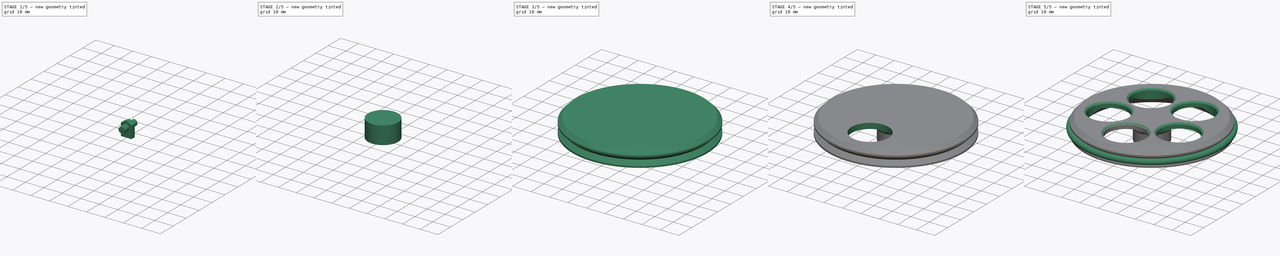
[diagram: build sequence overview — one tinted view per stage of 5, left to right]
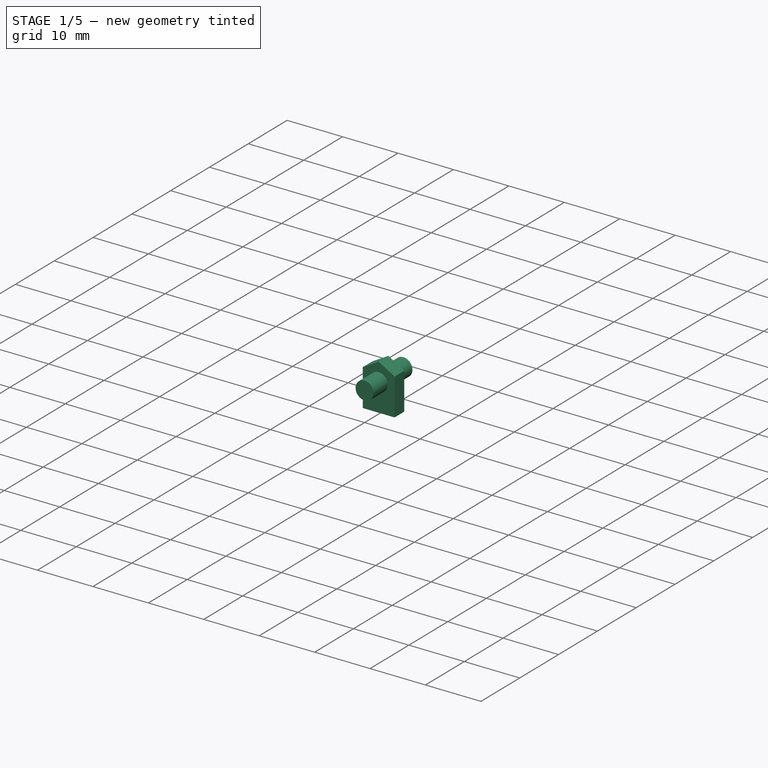
[diagram: stage 1 of 5 — iso view after this stage's code; geometry added in this stage tinted green]
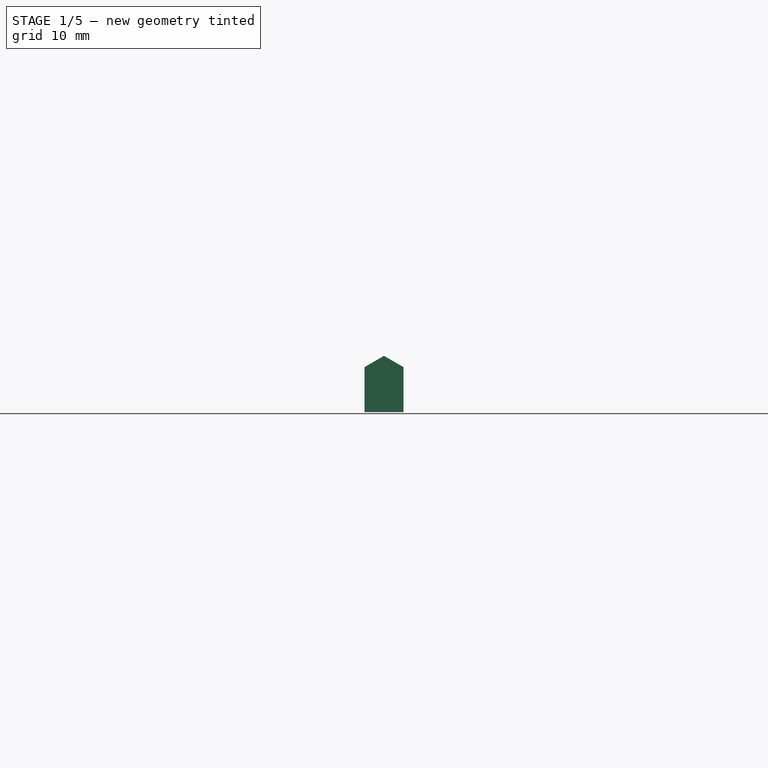
[diagram: stage 1 of 5 — front view after this stage's code; geometry added in this stage tinted green]
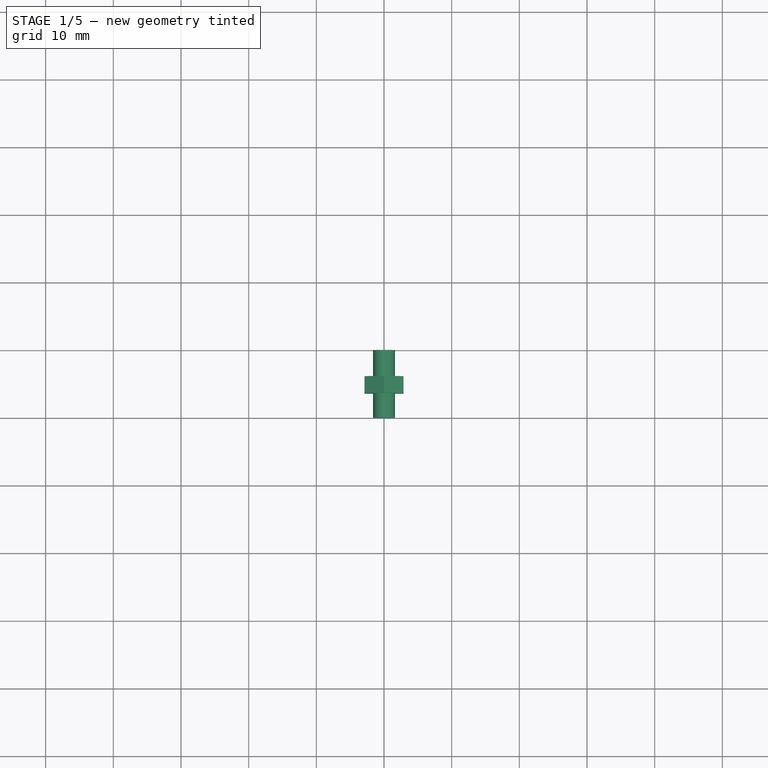
[diagram: stage 1 of 5 — top view after this stage's code; geometry added in this stage tinted green]
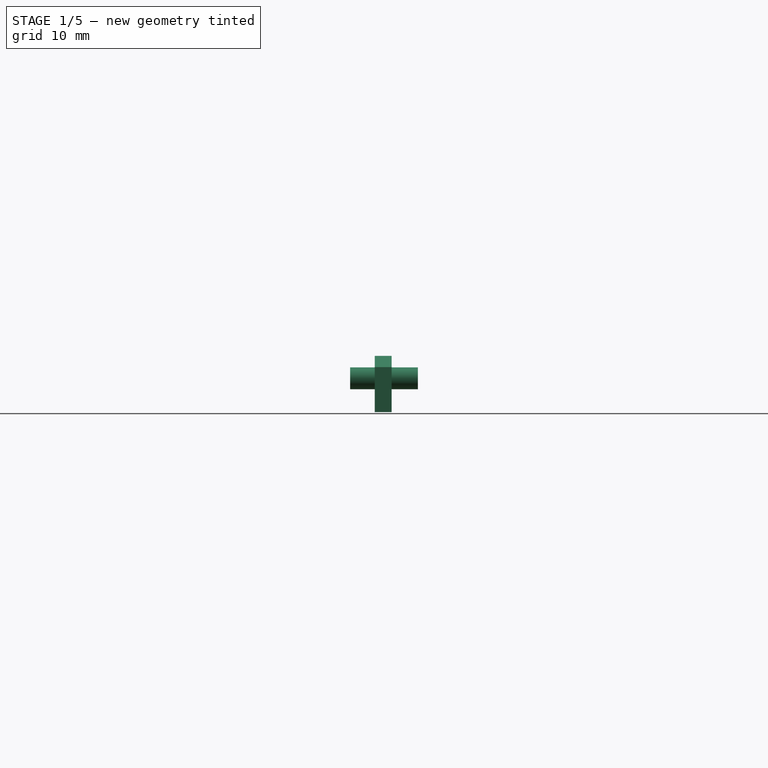
[diagram: stage 1 of 5 — right view after this stage's code; geometry added in this stage tinted green]
FCSTD DOCUMENT  (FreeCAD 0.14R3692 (Git))
Label: WheelNG
License: CC-BY 3.0
LicenseURL: http://creativecommons.org/licenses/by/3.0/
objects: Sketcher::SketchObject×6, PartDesign::Pocket×4, Part::Cylinder×2, Part::MultiFuse×2, PartDesign::Chamfer×2, Part::Feature×2, Part::Torus×1, PartDesign::Revolution×1, PartDesign::Pad×1, Part::FeaturePython×1, Part::Cut×1, PartDesign::PolarPattern×1, App::DocumentObjectGroup×1
note: 30 computed .brp shape members not serialized (recipe doc carries the construction recipe); baked Part::Feature solids carry a one-line shape summary decoded from their .brp

FEATURE [Sketcher::SketchObject] Sketch003  label="WheelShaftNutSketch003"
  Placement = pos=(0,0,0) rot=(1,0,0;1.5708rad)
  sketch-geometry (6):
    g0: LineSegment StartX=2.875 StartY=-5 StartZ=0 EndX=2.875 EndY=1.65988 EndZ=0
    g1: LineSegment StartX=2.875 StartY=1.65988 StartZ=0 EndX=0 EndY=3.31976 EndZ=0
    g2: LineSegment StartX=0 StartY=3.31976 StartZ=0 EndX=-2.875 EndY=1.65988 EndZ=0
    g3: LineSegment StartX=-2.875 StartY=1.65988 StartZ=0 EndX=-2.875 EndY=-5 EndZ=0
    g4: LineSegment StartX=-2.875 StartY=-5 StartZ=0 EndX=2.875 EndY=-5 EndZ=0
    g5: Circle [constr] CenterX=0 CenterY=0 CenterZ=0 NormalX=0 NormalY=0 NormalZ=1 Radius=3.31976
  constraints (17):
    c: Coincident(g0,g1)
    c: Coincident(g1,g2)
    c: Coincident(g2,g3)
    c: Coincident(g3,g4)
    c: Coincident(g0,g4)
    c: Horizontal(g4)
    c: Vertical(g0)
    c: Vertical(g3)
    c: Coincident(g5,g-1)
    c: PointOnObject(g1,g5)
    c: PointOnObject(g1,g-2)
    c: PointOnObject(g2,g5)
    c: PointOnObject(g0,g5)
    c: Equal(g1,g2)
    c: Angle(g2,g1) = 2.0944
    c: DistanceY(g-1,g3) = -5
    c: DistanceX(g4) = 5.75
FEATURE [PartDesign::Pad] Pad  label="WheelShaftNutPad"
  Length = 2.5
  Length2 = 100
  Midplane = true
  Placement = pos=(0,0,0) rot=(1,0,0;1.5708rad)
  Sketch = -> Sketch003
  Type = 0
FEATURE [Part::FeaturePython] Clone  label="Clone of WheelShaftNutPad"  # Draft clone (typed FeaturePython)
  Objects = -> [Pad]
  Placement = pos=(0,4.875,-2) rot=(1,0,0;1.5708rad)
  Scale = (1,1,1)
FEATURE [Part::Cylinder] Cylinder001  label="WheelShaftScrewCylinder001"
  Angle = 360
  Height = 10
  Placement = pos=(0,0,-2) rot=(-1,0,0;1.5708rad)
  Radius = 1.625
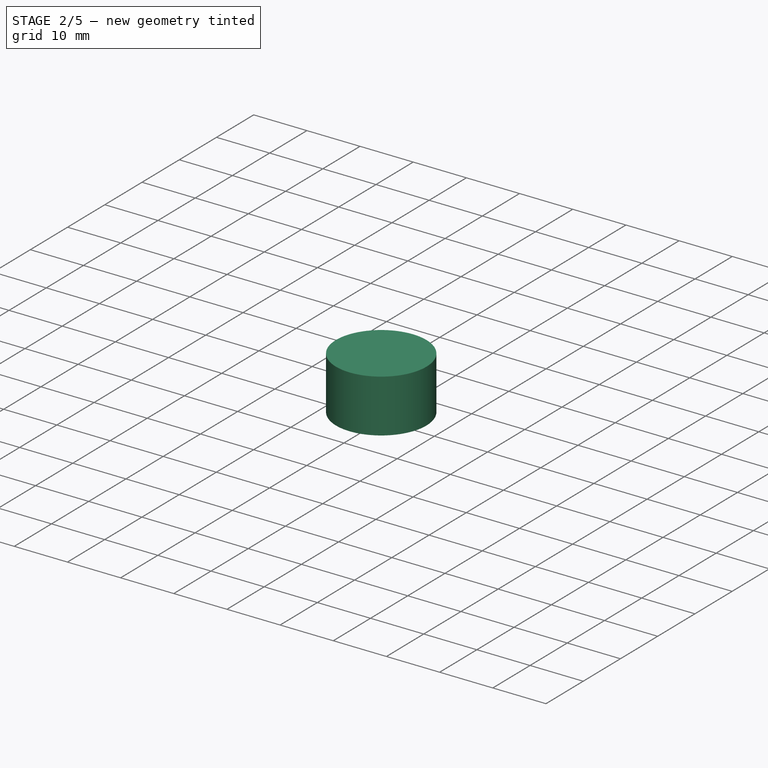
[diagram: stage 2 of 5 — iso view after this stage's code; geometry added in this stage tinted green]
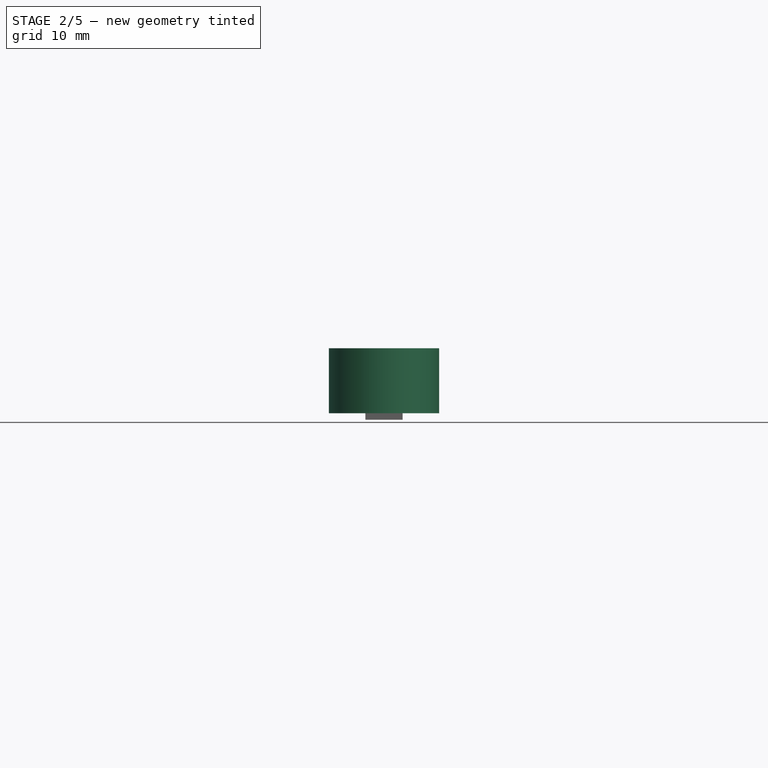
[diagram: stage 2 of 5 — front view after this stage's code; geometry added in this stage tinted green]
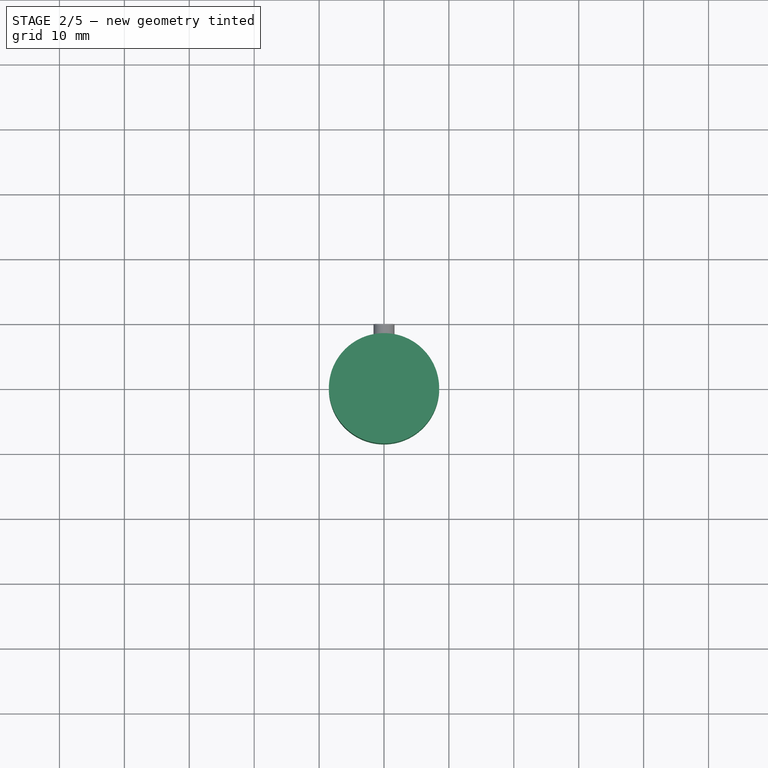
[diagram: stage 2 of 5 — top view after this stage's code; geometry added in this stage tinted green]
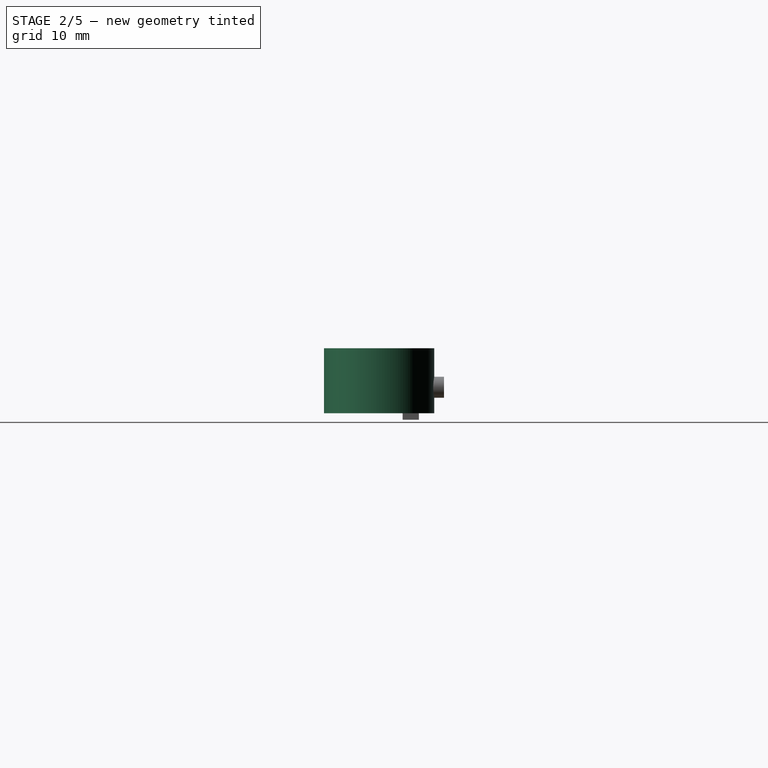
[diagram: stage 2 of 5 — right view after this stage's code; geometry added in this stage tinted green]
FEATURE [Part::Cylinder] Cylinder  label="WheelShaftCylinder"
  Angle = 360
  Height = 10
  Placement = pos=(0,0,-6) rot=(0,0,1;0rad)
  Radius = 8.5
FEATURE [Sketcher::SketchObject] Sketch001  label="WheelShaftRecesSketch001"
  Placement = pos=(0,0,-6) rot=(1,0,0;3.14159rad)
  Support = -> Cylinder [Face3]
  sketch-geometry (1):
    g0: Circle CenterX=0 CenterY=0 CenterZ=0 NormalX=0 NormalY=0 NormalZ=1 Radius=2.625
  constraints (2):
    c: Coincident(g0,g-1)
    c: Radius(g0) = 2.625
FEATURE [PartDesign::Pocket] Pocket  label="WheelShaftRecesPocket"
  Length = 1.5
  Placement = pos=(0,0,-6) rot=(0,0,1;0rad)
  Sketch = -> Sketch001
  Type = 0
FEATURE [Part::MultiFuse] Fusion  label="WheelShaftNutScrewFusion"
  Shapes = -> [Clone,Cylinder001]
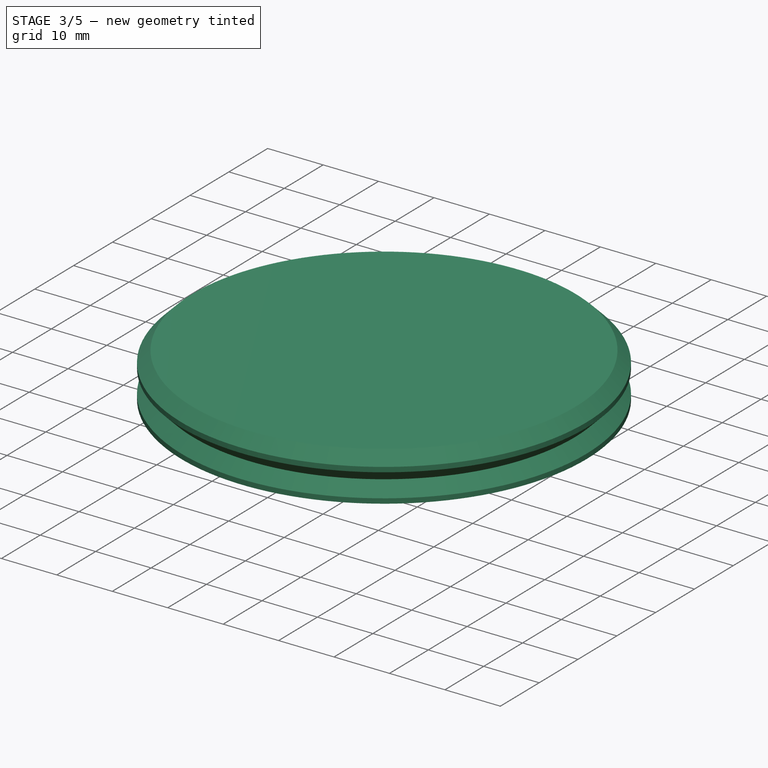
[diagram: stage 3 of 5 — iso view after this stage's code; geometry added in this stage tinted green]
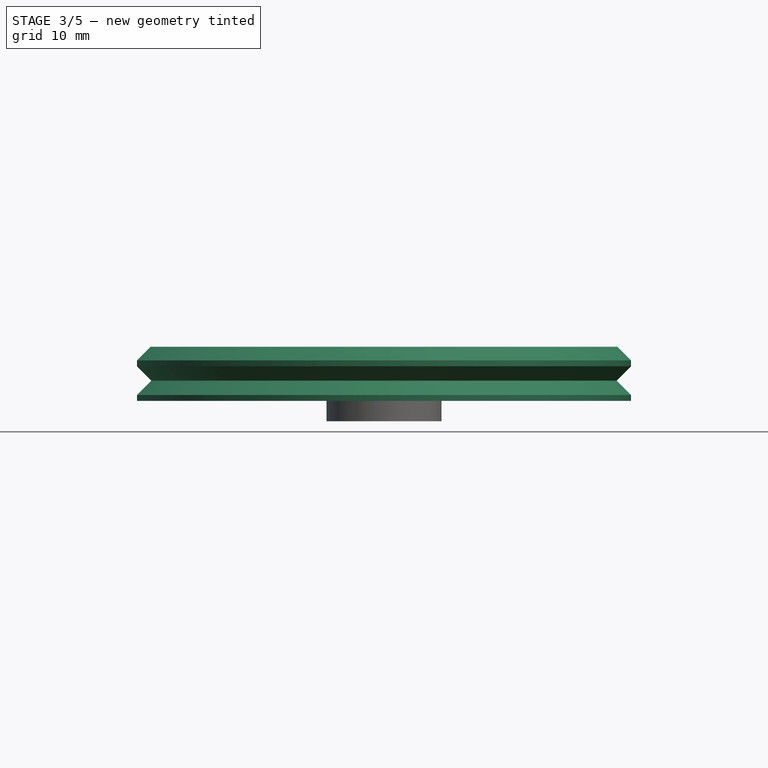
[diagram: stage 3 of 5 — front view after this stage's code; geometry added in this stage tinted green]
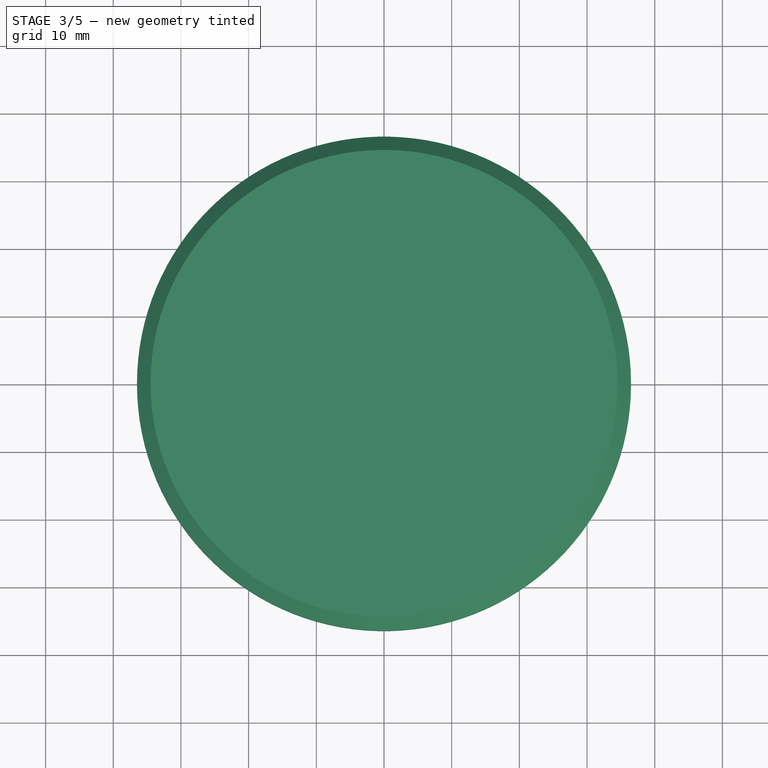
[diagram: stage 3 of 5 — top view after this stage's code; geometry added in this stage tinted green]
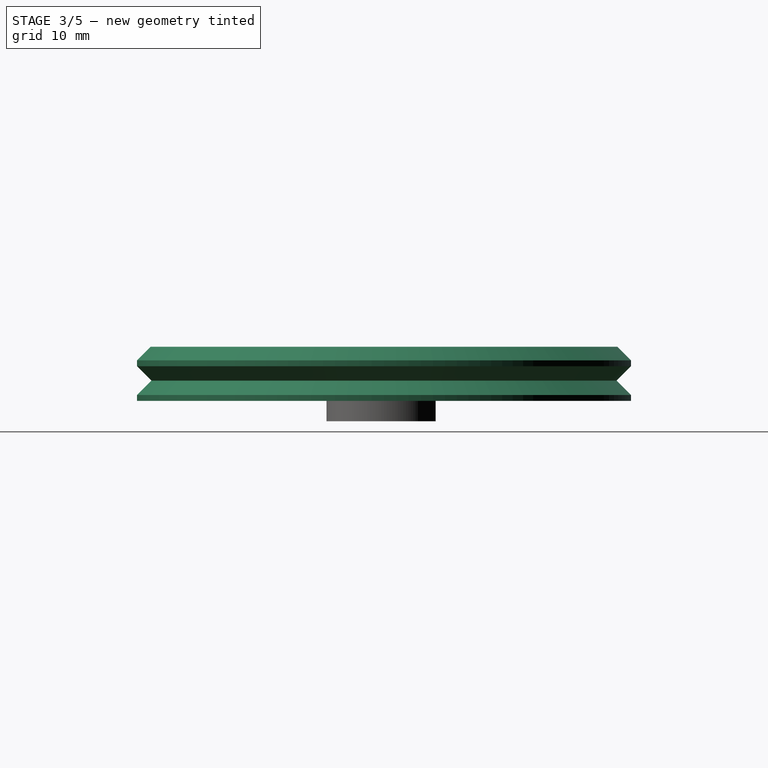
[diagram: stage 3 of 5 — right view after this stage's code; geometry added in this stage tinted green]
FEATURE [Sketcher::SketchObject] Sketch  label="WheelSketch"
  Placement = pos=(0,0,0) rot=(1,0,0;1.5708rad)
  sketch-geometry (13):
    g0: LineSegment StartX=34.5 StartY=5 StartZ=0 EndX=36.5 EndY=3 EndZ=0
    g1: LineSegment StartX=36.5 StartY=3 StartZ=0 EndX=36.5 EndY=2.12132 EndZ=0
    g2: LineSegment StartX=34.3787 StartY=0 StartZ=0 EndX=36.5 EndY=-2.12132 EndZ=0
    g3: LineSegment StartX=36.5 StartY=-2.12132 StartZ=0 EndX=36.5 EndY=-3 EndZ=0
    g4: LineSegment StartX=32.5 StartY=-3 StartZ=0 EndX=27.5 EndY=2 EndZ=0
    g5: LineSegment StartX=27.5 StartY=2 StartZ=0 EndX=0 EndY=2 EndZ=0
    g6: LineSegment StartX=0 StartY=2 StartZ=0 EndX=0 EndY=5 EndZ=0
    g7: LineSegment StartX=0 StartY=5 StartZ=0 EndX=34.5 EndY=5 EndZ=0
    g8: Circle [constr] CenterX=36.5 CenterY=0 CenterZ=0 NormalX=0 NormalY=0 NormalZ=1 Radius=1.5
    g9: LineSegment [constr] StartX=36.5 StartY=2.12132 StartZ=0 EndX=38.6213 EndY=1.6e-11 EndZ=0
    g10: LineSegment [constr] StartX=38.6213 StartY=1.6e-11 StartZ=0 EndX=36.5 EndY=-2.12132 EndZ=0
    g11: LineSegment StartX=36.5 StartY=-3 StartZ=0 EndX=32.5 EndY=-3 EndZ=0
    g12: LineSegment StartX=34.3787 StartY=0 StartZ=0 EndX=36.5 EndY=2.12132 EndZ=0
  constraints (39):
    c: Coincident(g0,g1)
    c: Coincident(g2,g3)
    c: Coincident(g4,g5)
    c: Coincident(g5,g6)
    c: Coincident(g6,g7)
    c: Coincident(g7,g0)
    c: Horizontal(g7)
    c: Horizontal(g5)
    c: Vertical(g1)
    c: Vertical(g3)
    c: Vertical(g6)
    c: Radius(g8) = 1.5
    c: PointOnObject(g8,g-1)
    c: DistanceX(g-1,g8) = 36.5
    c: Tangent(g8,g2)
    c: PointOnObject(g2,g-1)
    c: Coincident(g9,g10)
    c: Coincident(g1,g9)
    c: Coincident(g10,g2)
    c: Tangent(g9,g8)
    c: Tangent(g10,g8)
    c: Perpendicular(g9,g10)
    c: Equal(g1,g3)
    c: DistanceY(g0,g3) = -6
    c: Angle(g7,g0) = 2.35619
    c: DistanceY(g6) = 3
    c: PointOnObject(g5,g-2)
    c: DistanceY(g-1,g5) = 2
    c: Coincident(g4,g11)
    c: Horizontal(g11)
    c: Angle(g11,g4) = 2.35619
    c: DistanceX(g4,g3) = 4
    c: Coincident(g11,g3)
    c: Coincident(g12,g2)
    c: Coincident(g12,g1)
    c: Tangent(g12,g8)
    c: Equal(g12,g2)
    c: Equal(g2,g10)
    c: Equal(g10,g9)
FEATURE [PartDesign::Revolution] Revolution  label="WheelRevolution"
  Angle = 360
  Axis = (0,0,1)
  Base = (0,0,0)
  Placement = pos=(0,0,0) rot=(1,0,0;1.5708rad)
  ReferenceAxis = -> Sketch [V_Axis]
  Reversed = true
  Sketch = -> Sketch
FEATURE [Sketcher::SketchObject] Sketch002  label="WheelShaftHoleSketch002"
  Placement = pos=(0,0,-4.5) rot=(1,0,0;3.14159rad)
  Support = -> Pocket [Face5]
  sketch-geometry (2):
    g0: ArcOfCircle CenterX=0 CenterY=0 CenterZ=0 NormalX=0 NormalY=0 NormalZ=1 Radius=2.625 StartAngle=2.47406 EndAngle=6.95071
    g1: LineSegment StartX=2.06155 StartY=1.625 StartZ=0 EndX=-2.06155 EndY=1.625 EndZ=0
  constraints (6):
    c: Coincident(g0,g-1)
    c: Coincident(g1,g0)
    c: Coincident(g1,g0)
    c: Horizontal(g1)
    c: DistanceY(g-1,g0) = 1.625
    c: Radius(g0) = 2.625
FEATURE [PartDesign::Pocket] Pocket001  label="WheelShaftHolePocket001"
  Length = 6.5
  Placement = pos=(0,0,-6) rot=(0,0,1;0rad)
  Sketch = -> Sketch002
  Type = 0
FEATURE [Part::Cut] Cut  label="WheelShaftCut"
  Base = -> Pocket001
  Tool = -> Fusion
FEATURE [Sketcher::SketchObject] Sketch004  label="WheelShaftCutoutSketch004"
  ExternalGeometry = -> [Cut]
  Placement = pos=(0,0,-6) rot=(1,0,0;3.14159rad)
  Support = -> Cut [Face4]
  sketch-geometry (4):
    g0: LineSegment StartX=9 StartY=-9.625 StartZ=0 EndX=-9 EndY=-9.625 EndZ=0
    g1: LineSegment StartX=-9 StartY=-9.625 StartZ=0 EndX=-9 EndY=-7.625 EndZ=0
    g2: LineSegment StartX=-9 StartY=-7.625 StartZ=0 EndX=9 EndY=-7.625 EndZ=0
    g3: LineSegment StartX=9 StartY=-7.625 StartZ=0 EndX=9 EndY=-9.625 EndZ=0
  constraints (12):
    c: Coincident(g0,g1)
    c: Coincident(g1,g2)
    c: Coincident(g2,g3)
    c: Coincident(g3,g0)
    c: Horizontal(g0)
    c: Horizontal(g2)
    c: Vertical(g1)
    c: Vertical(g3)
    c: Symmetric(g0,g0,g-2)
    c: DistanceX(g0) = -18
    c: DistanceY(g-3,g2) = -1.5
    c: DistanceY(g3) = -2
FEATURE [PartDesign::Pocket] Pocket002  label="WheelShaftCutoutPocket002"
  Length = 5
  Sketch = -> Sketch004
  Type = 1
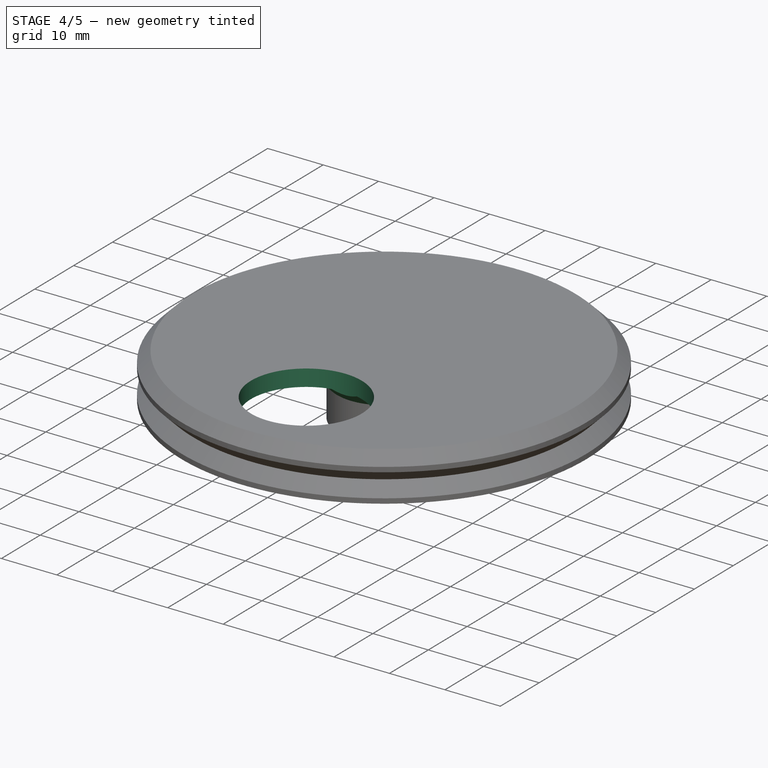
[diagram: stage 4 of 5 — iso view after this stage's code; geometry added in this stage tinted green]
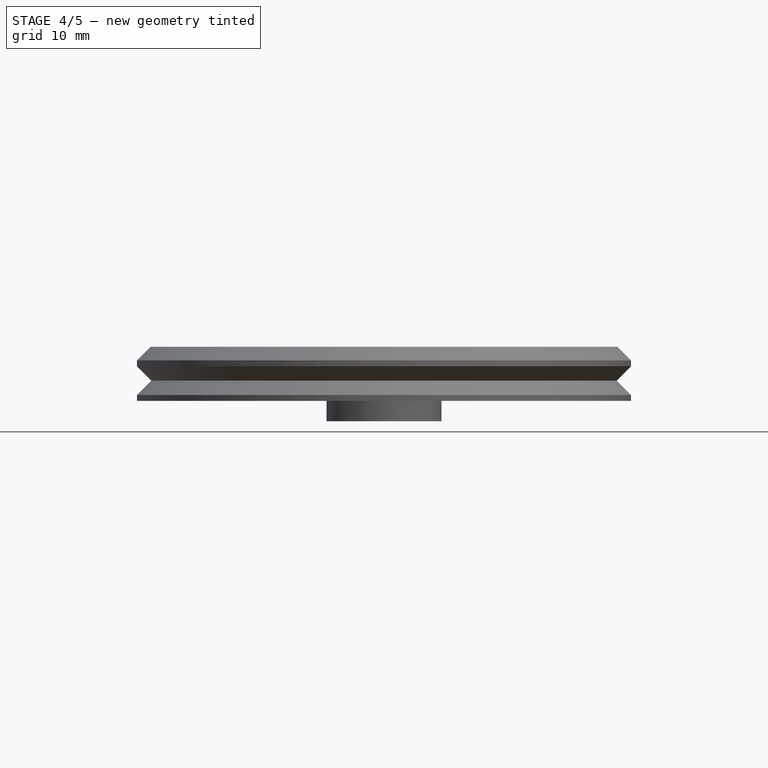
[diagram: stage 4 of 5 — front view after this stage's code; geometry added in this stage tinted green]
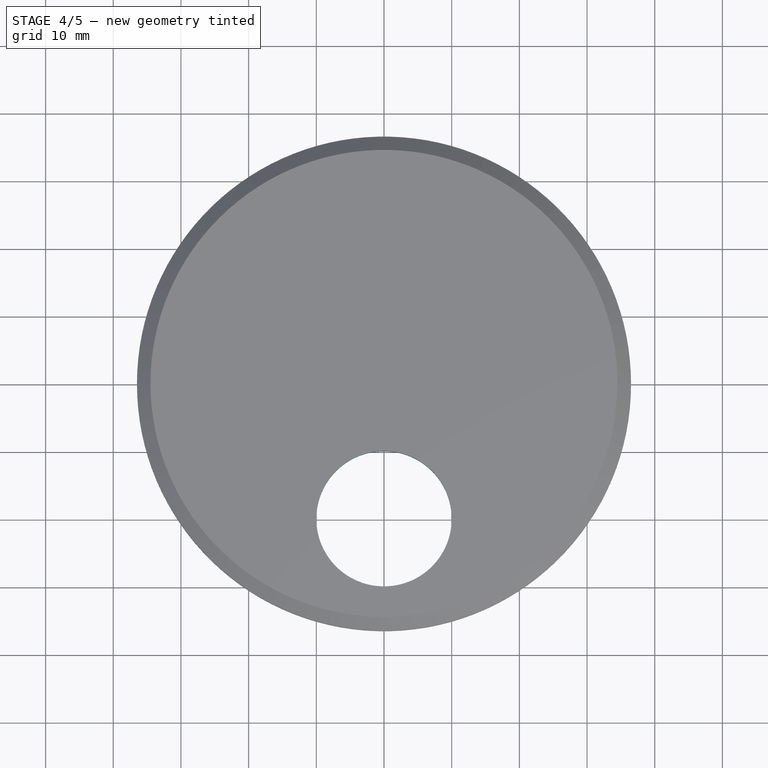
[diagram: stage 4 of 5 — top view after this stage's code; geometry added in this stage tinted green]
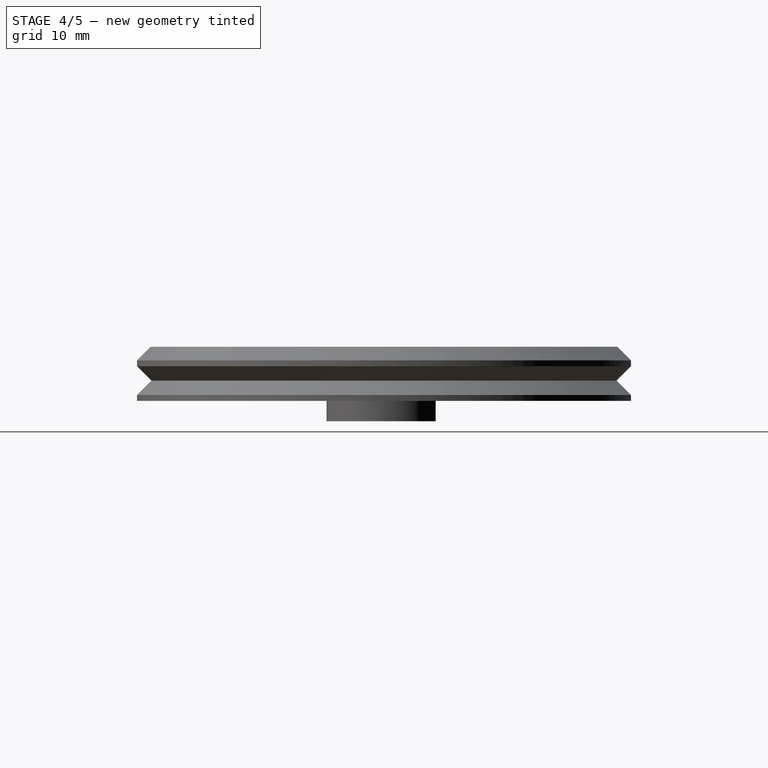
[diagram: stage 4 of 5 — right view after this stage's code; geometry added in this stage tinted green]
FEATURE [Part::MultiFuse] Fusion001  label="WheelFusion001"
  Shapes = -> [Pocket002,Revolution]
FEATURE [PartDesign::Chamfer] Chamfer  label="WheelShaftChamfer"
  Base = -> Fusion001 [Edge30]
  Size = 2
FEATURE [Sketcher::SketchObject] Sketch005  label="WheelCutoutSketch005"
  Placement = pos=(0,0,2) rot=(1,0,0;3.14159rad)
  Support = -> Chamfer [Face7]
  sketch-geometry (1):
    g0: Circle CenterX=0 CenterY=20 CenterZ=0 NormalX=0 NormalY=0 NormalZ=1 Radius=10
  constraints (3):
    c: PointOnObject(g0,g-2)
    c: DistanceY(g-1,g0) = 20
    c: Radius(g0) = 10
FEATURE [PartDesign::Pocket] Pocket003  label="WheelCutoutPocket003"
  Length = 6
  Midplane = true
  Sketch = -> Sketch005
  Type = 0
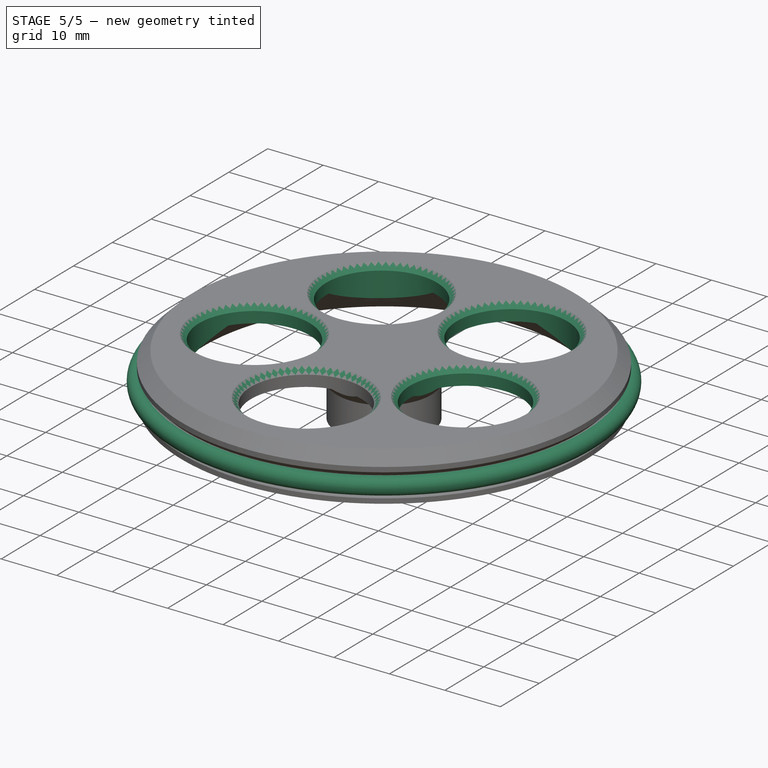
[diagram: stage 5 of 5 — iso view after this stage's code; geometry added in this stage tinted green]
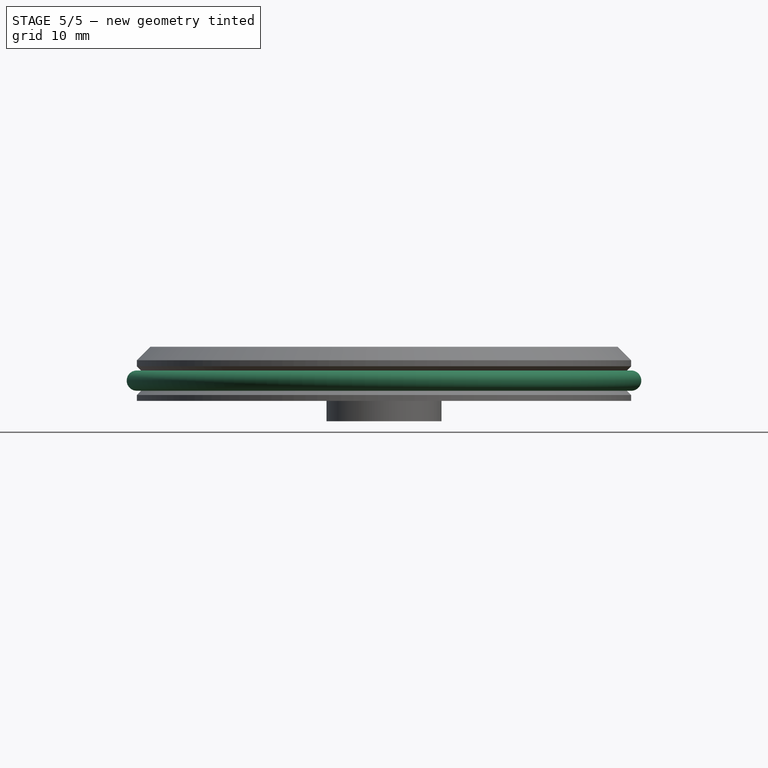
[diagram: stage 5 of 5 — front view after this stage's code; geometry added in this stage tinted green]
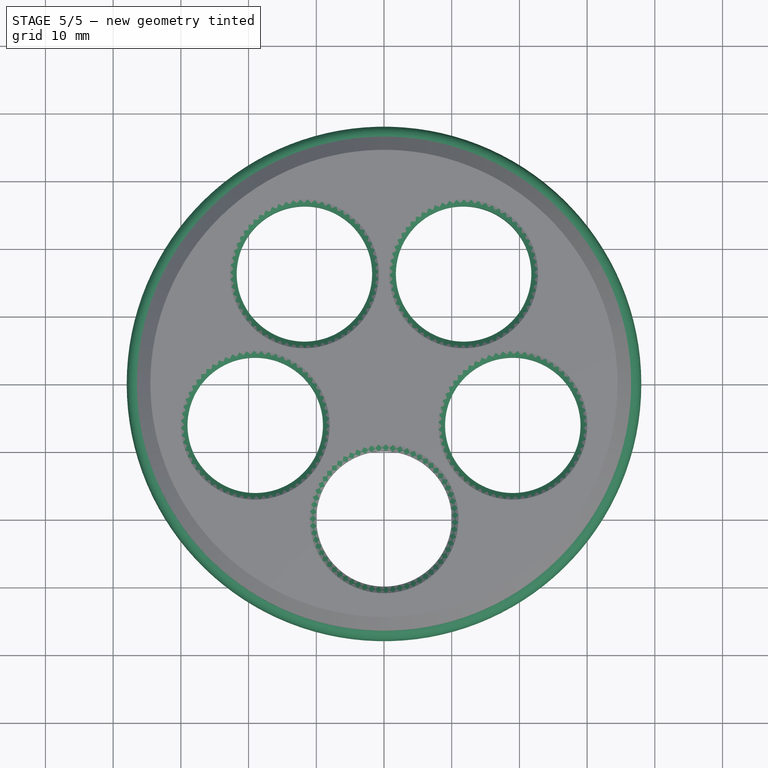
[diagram: stage 5 of 5 — top view after this stage's code; geometry added in this stage tinted green]
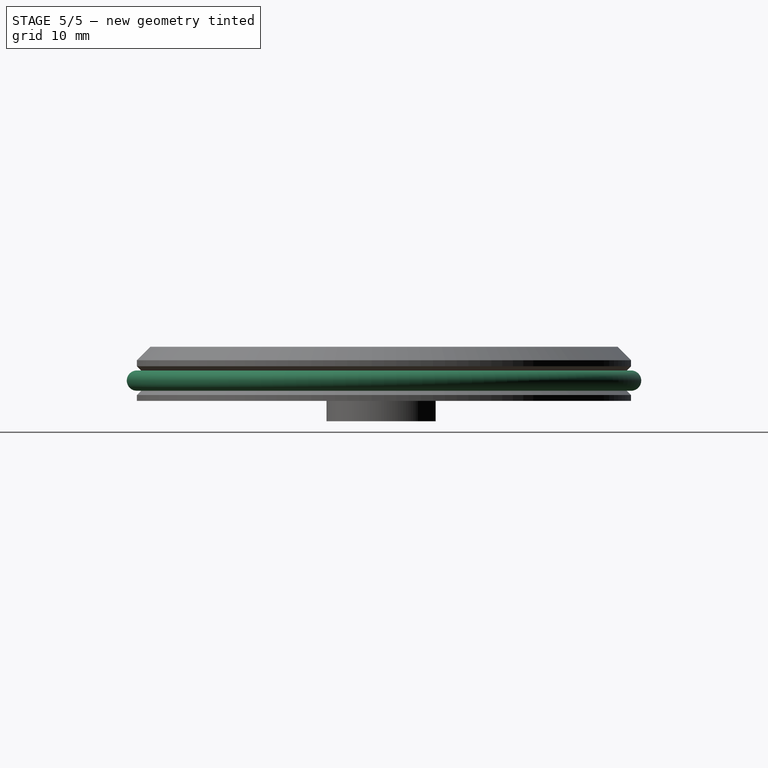
[diagram: stage 5 of 5 — right view after this stage's code; geometry added in this stage tinted green]
FEATURE [Part::Torus] Torus  label="OringTorus"
  Angle1 = -180
  Angle2 = 180
  Angle3 = 360
  Radius1 = 36.5
  Radius2 = 1.5
FEATURE [PartDesign::PolarPattern] PolarPattern  label="WheelCutoutPolarPattern"
  Angle = 360
  Axis = -> Sketch005 [N_Axis]
  Occurrences = 5
  Originals = -> [Pocket003]
FEATURE [PartDesign::Chamfer] Chamfer001  label="WheelCutoutChamfer001-Final"
  Base = -> PolarPattern [Edge66,Edge96,Edge88,Edge78,Edge57]
  Size = 1
FEATURE [Part::Feature] Part__Feature  label="WheelNutM3"
  Placement = pos=(0,6.125,-2) rot=(1,0,0;1.5708rad)
  shape: bbox 6.35 x 2.4 x 6.35 mm, 29 faces (baked)
FEATURE [Part::Feature] Part__Feature001  label="WheelBoltM3x10"
  Placement = pos=(0,11.625,-2) rot=(-1,0,0;1.5708rad)
  shape: bbox 5.5 x 13 x 5.5 mm, 16 faces (baked)
FEATURE [App::DocumentObjectGroup] Group  label="FastenersGroup"
  Group = -> [Part__Feature001,Part__Feature]
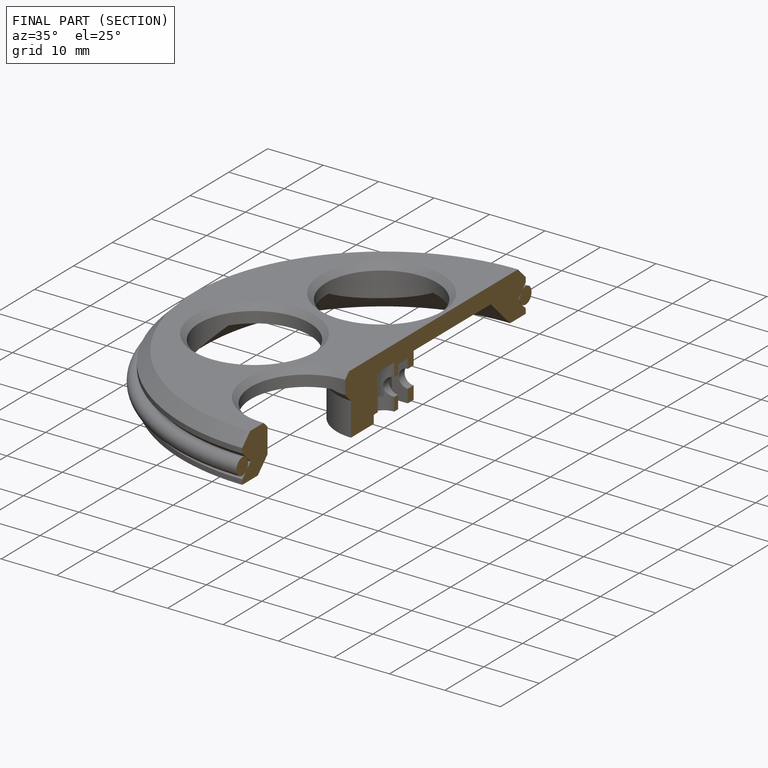
[diagram: finished part — half-section view (interior)]
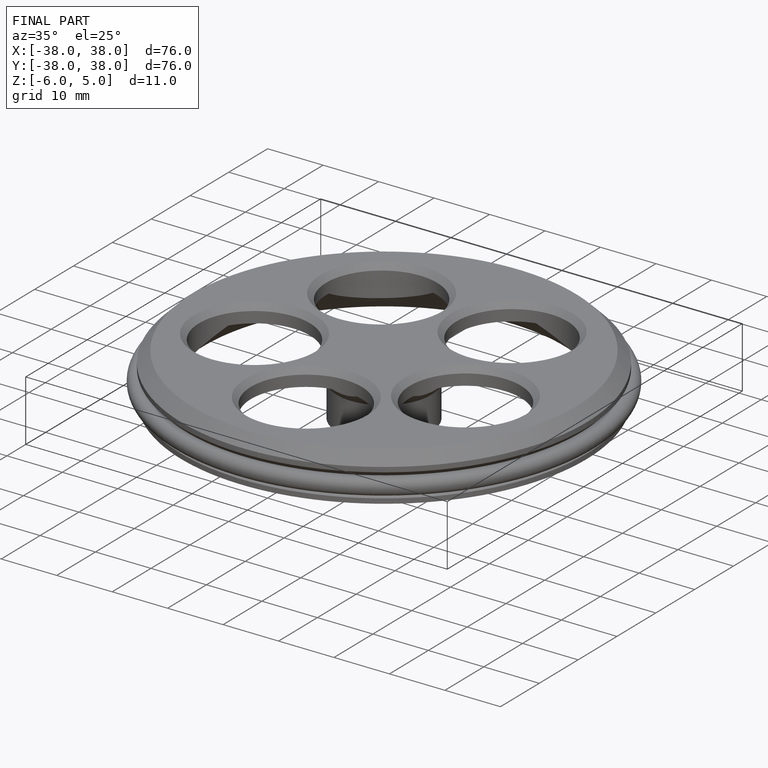
[diagram: finished part — iso view with bounding-box wireframe]
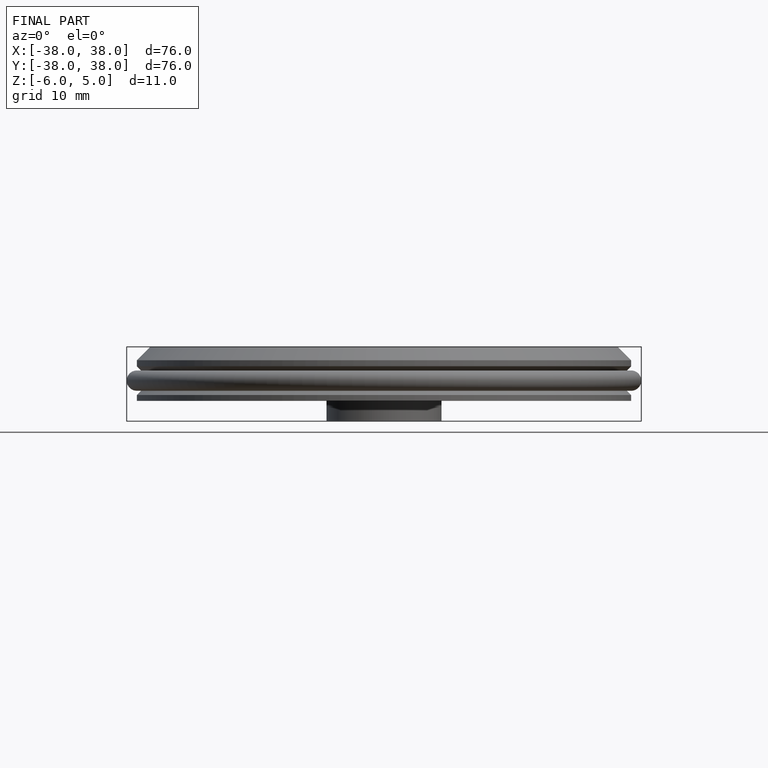
[diagram: finished part — front view with bounding-box wireframe]
